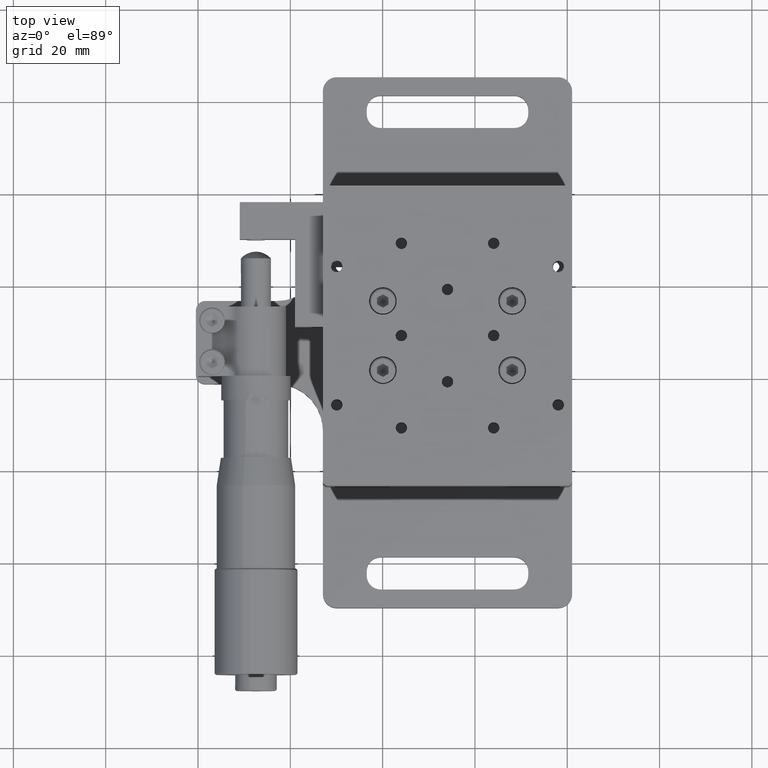
[diagram: clean part render]
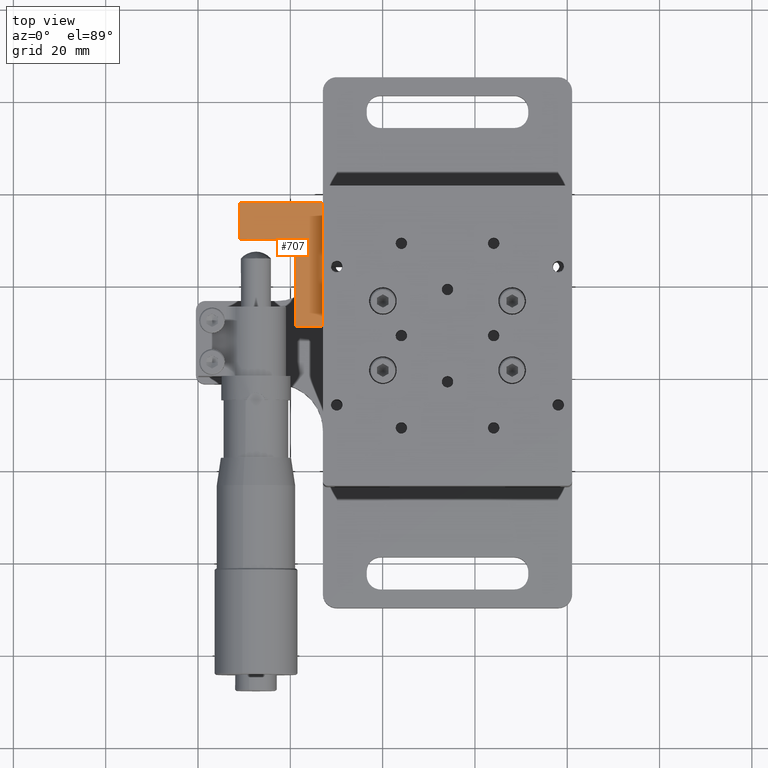
[diagram: same view with one face highlighted and labeled with its STEP entity id]
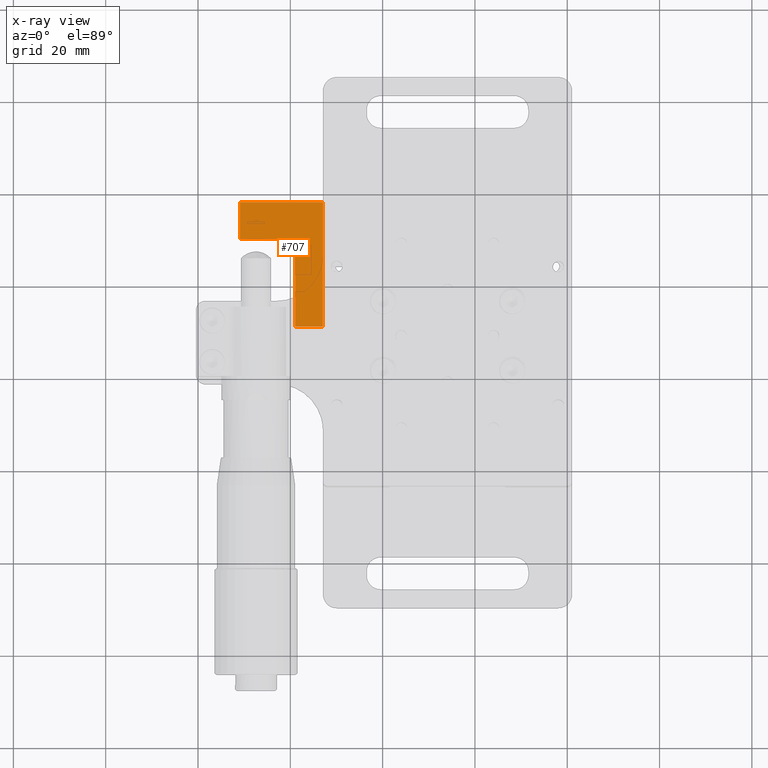
[diagram: x-ray of the same camera — body ghosted, the highlighted face saturated]
A machine part, top view. The second image highlights one B-rep face of the part: STEP entity #707.
The next image is the same camera in x-ray: the body ghosted, the highlighted face saturated — about 0% of this face is hidden behind the body in this view.
In plain terms, the highlighted face is a freeform B-spline surface patch.
Its self-contained STEP definition (entity closure, byte-faithful):
#707=ADVANCED_FACE('',(#1360),#23997,.T.);
#1360=FACE_OUTER_BOUND('',#2089,.T.);
#2089=EDGE_LOOP('',(#4324,#4325,#4326,#4327,#4328,#4329));
#4324=ORIENTED_EDGE('',*,*,#20177,.T.);
#4325=ORIENTED_EDGE('',*,*,#20178,.T.);
#4326=ORIENTED_EDGE('',*,*,#20157,.F.);
#4327=ORIENTED_EDGE('',*,*,#20174,.F.);
#4328=ORIENTED_EDGE('',*,*,#20179,.T.);
#4329=ORIENTED_EDGE('',*,*,#20146,.F.);
#7906=PCURVE('',#23992,#11531);
#7919=PCURVE('',#23994,#11544);
#7941=PCURVE('',#23996,#11566);
#7949=PCURVE('',#23997,#11574);
#7950=PCURVE('',#23997,#11575);
#7951=PCURVE('',#23997,#11576);
#7952=PCURVE('',#23997,#11577);
#7953=PCURVE('',#23997,#11578);
#7954=PCURVE('',#23997,#11579);
#7956=PCURVE('',#23998,#11581);
#7960=PCURVE('',#23999,#11585);
#7965=PCURVE('',#24000,#11590);
#11531=DEFINITIONAL_REPRESENTATION('',(#15509),#50008);
#11544=DEFINITIONAL_REPRESENTATION('',(#15529),#50008);
#11566=DEFINITIONAL_REPRESENTATION('',(#15547),#50008);
#11574=DEFINITIONAL_REPRESENTATION('',(#15551),#50008);
#11575=DEFINITIONAL_REPRESENTATION('',(#15553),#50008);
#11576=DEFINITIONAL_REPRESENTATION('',(#15554),#50008);
#11577=DEFINITIONAL_REPRESENTATION('',(#15555),#50008);
#11578=DEFINITIONAL_REPRESENTATION('',(#15557),#50008);
#11579=DEFINITIONAL_REPRESENTATION('',(#15558),#50008);
#11581=DEFINITIONAL_REPRESENTATION('',(#15560),#50008);
#11585=DEFINITIONAL_REPRESENTATION('',(#15565),#50008);
#11590=DEFINITIONAL_REPRESENTATION('',(#15570),#50008);
#15508=B_SPLINE_CURVE_WITH_KNOTS('',1,(#38333,#38334),.UNSPECIFIED.,.F.,
 .F.,(2,2),(0.,27.),.UNSPECIFIED.);
#15509=B_SPLINE_CURVE_WITH_KNOTS('',1,(#38335,#38336),.UNSPECIFIED.,.F.,
 .F.,(2,2),(0.,27.),.UNSPECIFIED.);
#15528=B_SPLINE_CURVE_WITH_KNOTS('',1,(#38393,#38394),.UNSPECIFIED.,.F.,
 .F.,(2,2),(-12.,0.),.UNSPECIFIED.);
#15529=B_SPLINE_CURVE_WITH_KNOTS('',1,(#38395,#38396),.UNSPECIFIED.,.F.,
 .F.,(2,2),(-12.,0.),.UNSPECIFIED.);
#15546=B_SPLINE_CURVE_WITH_KNOTS('',1,(#38518,#38519),.UNSPECIFIED.,.F.,
 .F.,(2,2),(-19.0000000000001,0.),.UNSPECIFIED.);
#15547=B_SPLINE_CURVE_WITH_KNOTS('',1,(#38520,#38521),.UNSPECIFIED.,.F.,
 .F.,(2,2),(-19.0000000000001,0.),.UNSPECIFIED.);
#15550=B_SPLINE_CURVE_WITH_KNOTS('',1,(#38557,#38558),.UNSPECIFIED.,.F.,
 .F.,(2,2),(0.,18.),.UNSPECIFIED.);
#15551=B_SPLINE_CURVE_WITH_KNOTS('',1,(#38559,#38560),.UNSPECIFIED.,.F.,
 .F.,(2,2),(0.,18.),.UNSPECIFIED.);
#15552=B_SPLINE_CURVE_WITH_KNOTS('',1,(#38561,#38562),.UNSPECIFIED.,.F.,
 .F.,(2,2),(0.,7.99999999999995),.UNSPECIFIED.);
#15553=B_SPLINE_CURVE_WITH_KNOTS('',1,(#38563,#38564),.UNSPECIFIED.,.F.,
 .F.,(2,2),(0.,7.99999999999995),.UNSPECIFIED.);
#15554=B_SPLINE_CURVE_WITH_KNOTS('',1,(#38565,#38566),.UNSPECIFIED.,.F.,
 .F.,(2,2),(-12.,0.),.UNSPECIFIED.);
#15555=B_SPLINE_CURVE_WITH_KNOTS('',1,(#38567,#38568),.UNSPECIFIED.,.F.,
 .F.,(2,2),(-19.0000000000001,0.),.UNSPECIFIED.);
#15556=B_SPLINE_CURVE_WITH_KNOTS('',1,(#38569,#38570),.UNSPECIFIED.,.F.,
 .F.,(2,2),(0.,6.),.UNSPECIFIED.);
#15557=B_SPLINE_CURVE_WITH_KNOTS('',1,(#38571,#38572),.UNSPECIFIED.,.F.,
 .F.,(2,2),(0.,6.),.UNSPECIFIED.);
#15558=B_SPLINE_CURVE_WITH_KNOTS('',1,(#38573,#38574),.UNSPECIFIED.,.F.,
 .F.,(2,2),(0.,27.),.UNSPECIFIED.);
#15560=B_SPLINE_CURVE_WITH_KNOTS('',1,(#38577,#38578),.UNSPECIFIED.,.F.,
 .F.,(2,2),(0.,7.99999999999995),.UNSPECIFIED.);
#15565=B_SPLINE_CURVE_WITH_KNOTS('',1,(#38587,#38588),.UNSPECIFIED.,.F.,
 .F.,(2,2),(0.,18.),.UNSPECIFIED.);
#15570=B_SPLINE_CURVE_WITH_KNOTS('',1,(#38597,#38598),.UNSPECIFIED.,.F.,
 .F.,(2,2),(0.,6.),.UNSPECIFIED.);
#18291=SURFACE_CURVE('',#15508,(#7906,#7954),.PCURVE_S1.);
#18302=SURFACE_CURVE('',#15528,(#7919,#7951),.PCURVE_S1.);
#18319=SURFACE_CURVE('',#15546,(#7941,#7952),.PCURVE_S1.);
#18322=SURFACE_CURVE('',#15550,(#7949,#7960),.PCURVE_S1.);
#18323=SURFACE_CURVE('',#15552,(#7950,#7956),.PCURVE_S1.);
#18324=SURFACE_CURVE('',#15556,(#7953,#7965),.PCURVE_S1.);
#20146=EDGE_CURVE('',#23183,#23185,#18291,.T.);
#20157=EDGE_CURVE('',#23194,#23193,#18302,.T.);
#20174=EDGE_CURVE('',#23204,#23194,#18319,.T.);
#20177=EDGE_CURVE('',#23183,#23208,#18322,.T.);
#20178=EDGE_CURVE('',#23208,#23193,#18323,.T.);
#20179=EDGE_CURVE('',#23204,#23185,#18324,.T.);
#23183=VERTEX_POINT('',#30826);
#23185=VERTEX_POINT('',#30828);
#23193=VERTEX_POINT('',#30836);
#23194=VERTEX_POINT('',#30837);
#23204=VERTEX_POINT('',#30847);
#23208=VERTEX_POINT('',#30851);
#23992=B_SPLINE_SURFACE_WITH_KNOTS('',1,1,((#27424,#27425),(#27426,#27427)),
 .UNSPECIFIED.,.F.,.F.,.F.,(2,2),(2,2),(-37.9200000000001,37.92),(-10.3699999999999,
13.87),.UNSPECIFIED.);
#23994=B_SPLINE_SURFACE_WITH_KNOTS('',1,1,((#27432,#27433),(#27434,#27435)),
 .UNSPECIFIED.,.F.,.F.,.F.,(2,2),(2,2),(-1.32,13.32),(0.679999999999996,
15.32),.UNSPECIFIED.);
#23996=B_SPLINE_SURFACE_WITH_KNOTS('',1,1,((#27476,#27477),(#27478,#27479)),
 .UNSPECIFIED.,.F.,.F.,.F.,(2,2),(2,2),(-1.32,13.32),(-12.02,11.02),
 .UNSPECIFIED.);
#23997=B_SPLINE_SURFACE_WITH_KNOTS('',1,1,((#27480,#27481),(#27482,#27483)),
 .UNSPECIFIED.,.F.,.F.,.F.,(2,2),(2,2),(-33.82,-1.18),(-21.92,-0.0799999999999981),
 .UNSPECIFIED.);
#23998=B_SPLINE_SURFACE_WITH_KNOTS('',1,1,((#27484,#27485),(#27486,#27487)),
 .UNSPECIFIED.,.F.,.F.,.F.,(2,2),(2,2),(-1.32,13.32),(-0.919999999999995,
8.91999999999996),.UNSPECIFIED.);
#23999=B_SPLINE_SURFACE_WITH_KNOTS('',1,1,((#27488,#27489),(#27490,#27491)),
 .UNSPECIFIED.,.F.,.F.,.F.,(2,2),(2,2),(-1.32,13.32),(-19.92,1.92),
 .UNSPECIFIED.);
#24000=B_SPLINE_SURFACE_WITH_KNOTS('',1,1,((#27492,#27493),(#27494,#27495)),
 .UNSPECIFIED.,.F.,.F.,.F.,(2,2),(2,2),(-6.72,0.720000000000004),(-1.32,
13.32),.UNSPECIFIED.);
#27424=CARTESIAN_POINT('',(-26.3729506502019,14.3531964156234,52.4487996664619));
#27425=CARTESIAN_POINT('',(-26.3729506502019,-9.88680358437654,52.4487996664619));
#27426=CARTESIAN_POINT('',(-26.3729506502019,14.3531964156234,-23.3912003335382));
#27427=CARTESIAN_POINT('',(-26.3729506502019,-9.88680358437654,-23.3912003335382));
#27432=CARTESIAN_POINT('',(-45.6929506502019,10.5531964156235,-6.47120033353815));
#27433=CARTESIAN_POINT('',(-31.0529506502019,10.5531964156235,-6.47120033353815));
#27434=CARTESIAN_POINT('',(-45.6929506502019,-4.08680358437655,-6.47120033353815));
#27435=CARTESIAN_POINT('',(-31.0529506502019,-4.08680358437655,-6.47120033353815));
#27476=CARTESIAN_POINT('',(-32.3729506502019,10.5531964156235,-8.49120033353815));
#27477=CARTESIAN_POINT('',(-32.3729506502019,10.5531964156235,14.5487996664619));
#27478=CARTESIAN_POINT('',(-32.3729506502019,-4.08680358437655,-8.49120033353815));
#27479=CARTESIAN_POINT('',(-32.3729506502019,-4.08680358437655,14.5487996664619));
#27480=CARTESIAN_POINT('',(-24.4529506502019,9.23319641562345,15.3487996664619));
#27481=CARTESIAN_POINT('',(-46.2929506502019,9.23319641562345,15.3487996664619));
#27482=CARTESIAN_POINT('',(-24.4529506502019,9.23319641562345,-17.2912003335381));
#27483=CARTESIAN_POINT('',(-46.2929506502019,9.23319641562345,-17.2912003335381));
#27484=CARTESIAN_POINT('',(-44.3729506502019,10.5531964156235,-15.3912003335381));
#27485=CARTESIAN_POINT('',(-44.3729506502019,10.5531964156235,-5.55120033353814));
#27486=CARTESIAN_POINT('',(-44.3729506502019,-4.08680358437655,-15.3912003335381));
#27487=CARTESIAN_POINT('',(-44.3729506502019,-4.08680358437655,-5.55120033353814));
#27488=CARTESIAN_POINT('',(-24.4529506502019,10.5531964156235,-14.4712003335381));
#27489=CARTESIAN_POINT('',(-46.2929506502019,10.5531964156235,-14.4712003335381));
#27490=CARTESIAN_POINT('',(-24.4529506502019,-4.08680358437655,-14.4712003335381));
#27491=CARTESIAN_POINT('',(-46.2929506502019,-4.08680358437655,-14.4712003335381));
#27492=CARTESIAN_POINT('',(-25.6529506502019,10.5531964156235,12.5287996664619));
#27493=CARTESIAN_POINT('',(-25.6529506502019,-4.08680358437655,12.5287996664619));
#27494=CARTESIAN_POINT('',(-33.0929506502019,10.5531964156235,12.5287996664619));
#27495=CARTESIAN_POINT('',(-33.0929506502019,-4.08680358437655,12.5287996664619));
#30826=CARTESIAN_POINT('',(-26.3729506502019,9.23319641562345,-14.4712003335381));
#30828=CARTESIAN_POINT('',(-26.3729506502019,9.23319641562345,12.5287996664619));
#30836=CARTESIAN_POINT('',(-44.3729506502019,9.23319641562345,-6.47120033353815));
#30837=CARTESIAN_POINT('',(-32.3729506502019,9.23319641562345,-6.47120033353815));
#30847=CARTESIAN_POINT('',(-32.3729506502019,9.23319641562345,12.5287996664619));
#30851=CARTESIAN_POINT('',(-44.3729506502019,9.23319641562345,-14.4712003335381));
#38333=CARTESIAN_POINT('',(-26.3729506502019,9.23319641562345,-14.4712003335381));
#38334=CARTESIAN_POINT('',(-26.3729506502019,9.23319641562345,12.5287996664619));
#38335=CARTESIAN_POINT('',(28.9999999999999,-5.25));
#38336=CARTESIAN_POINT('',(1.9999999999999,-5.25));
#38393=CARTESIAN_POINT('',(-32.3729506502019,9.23319641562345,-6.47120033353815));
#38394=CARTESIAN_POINT('',(-44.3729506502019,9.23319641562345,-6.47120033353815));
#38395=CARTESIAN_POINT('',(1.87724324081321E-15,14.));
#38396=CARTESIAN_POINT('',(2.68177605830458E-16,2.));
#38518=CARTESIAN_POINT('',(-32.3729506502019,9.23319641562345,12.5287996664619));
#38519=CARTESIAN_POINT('',(-32.3729506502019,9.23319641562345,-6.47120033353815));
#38520=CARTESIAN_POINT('',(-2.52002407717235E-31,9.00000000000004));
#38521=CARTESIAN_POINT('',(2.80002675241371E-31,-10.));
#38557=CARTESIAN_POINT('',(-26.3729506502019,9.23319641562345,-14.4712003335381));
#38558=CARTESIAN_POINT('',(-44.3729506502019,9.23319641562345,-14.4712003335381));
#38559=CARTESIAN_POINT('',(-4.,-20.));
#38560=CARTESIAN_POINT('',(-4.,-2.));
#38561=CARTESIAN_POINT('',(-44.3729506502019,9.23319641562345,-14.4712003335381));
#38562=CARTESIAN_POINT('',(-44.3729506502019,9.23319641562345,-6.47120033353815));
#38563=CARTESIAN_POINT('',(-4.,-2.));
#38564=CARTESIAN_POINT('',(-12.,-2.));
#38565=CARTESIAN_POINT('',(-11.9999999999999,-14.));
#38566=CARTESIAN_POINT('',(-12.,-2.));
#38567=CARTESIAN_POINT('',(-31.,-14.));
#38568=CARTESIAN_POINT('',(-11.9999999999999,-14.));
#38569=CARTESIAN_POINT('',(-32.3729506502019,9.23319641562345,12.5287996664619));
#38570=CARTESIAN_POINT('',(-26.3729506502019,9.23319641562345,12.5287996664619));
#38571=CARTESIAN_POINT('',(-31.,-14.));
#38572=CARTESIAN_POINT('',(-31.,-20.));
#38573=CARTESIAN_POINT('',(-4.,-20.));
#38574=CARTESIAN_POINT('',(-31.,-20.));
#38577=CARTESIAN_POINT('',(0.,0.));
#38578=CARTESIAN_POINT('',(7.28756108388742E-31,7.99999999999995));
#38587=CARTESIAN_POINT('',(2.41359845247412E-15,-18.));
#38588=CARTESIAN_POINT('',(0.,0.));
#38597=CARTESIAN_POINT('',(0.,0.));
#38598=CARTESIAN_POINT('',(-6.,8.04532817491374E-16));
#50008=(
GEOMETRIC_REPRESENTATION_CONTEXT(2)
PARAMETRIC_REPRESENTATION_CONTEXT()
REPRESENTATION_CONTEXT('pspace','')
);